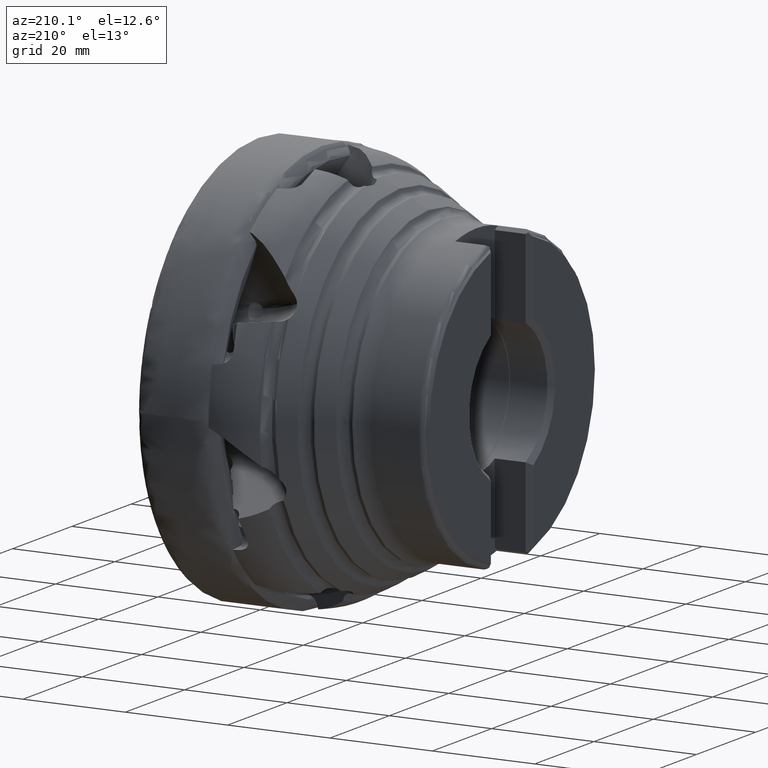
[diagram: clean part render]
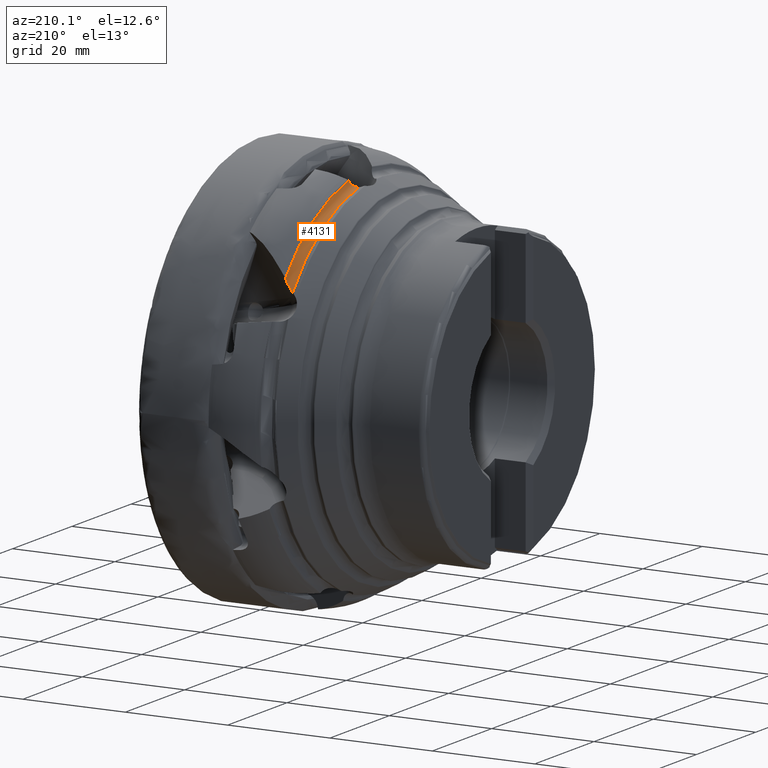
[diagram: same view with one face highlighted and labeled with its STEP entity id]
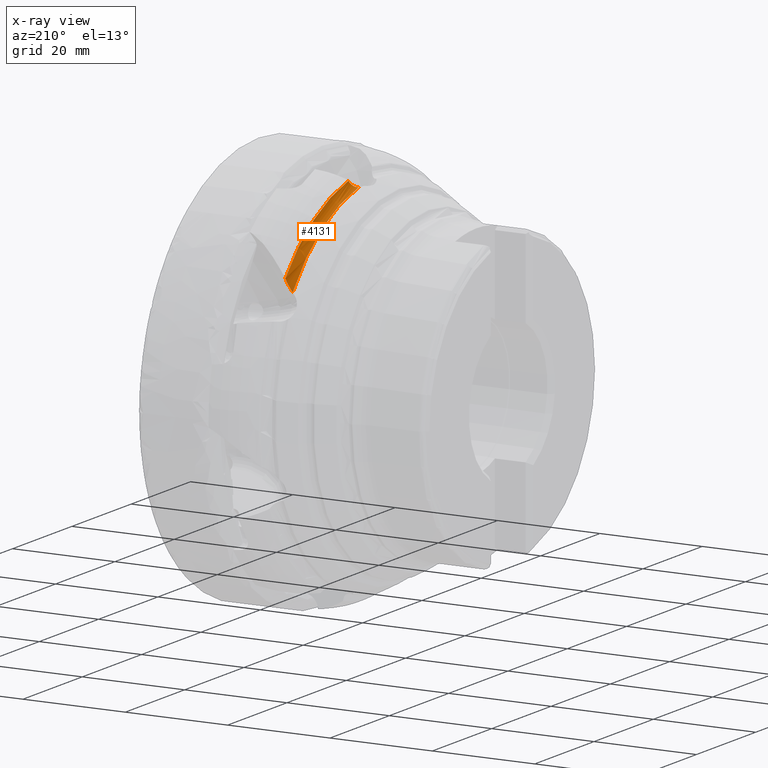
[diagram: x-ray of the same camera — body ghosted, the highlighted face saturated]
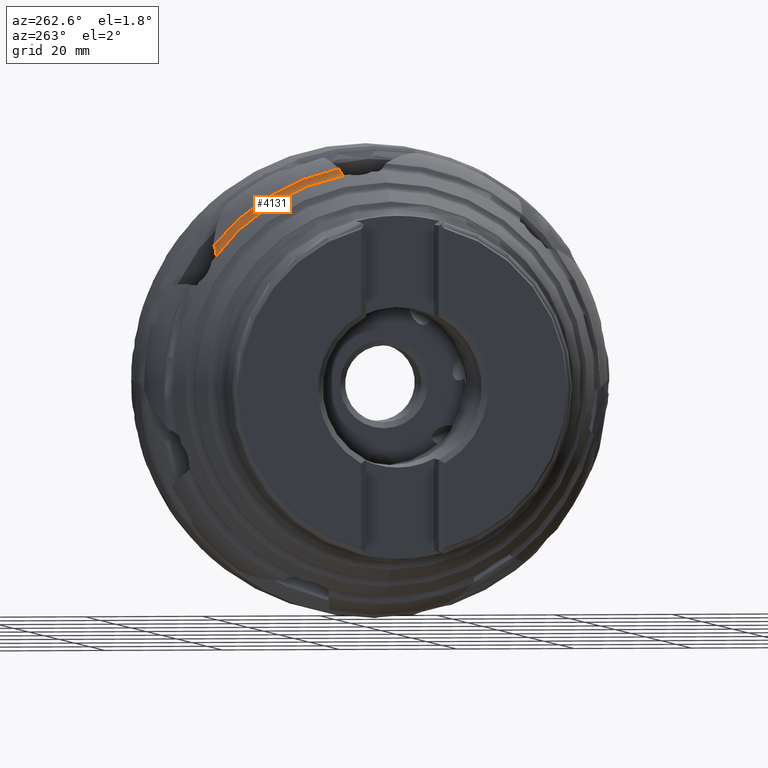
[diagram: same view with one face highlighted and labeled with its STEP entity id]
A machine part, auxiliary view. The second image highlights one B-rep face of the part: STEP entity #4131.
The next image is the same camera in x-ray: the body ghosted, the highlighted face saturated — about 0% of this face is hidden behind the body in this view.
A second angle (auxiliary view) of the same face is appended — the face is thin or edge-on in the first view.
In plain terms, the highlighted toroidal blend (fillet) surface has major radius 37.2787 mm and minor (blend) radius 1.5 mm.
Its self-contained STEP definition (entity closure, byte-faithful):
#122 = CARTESIAN_POINT ( 'NONE',  ( -21.61543644238035400, 28.48814257179125100, 23.09288711005839900 ) ) ;
#688 = CARTESIAN_POINT ( 'NONE',  ( -21.82258156022773200, 6.995801241309860300, 35.66252479020155900 ) ) ;
#1532 = EDGE_CURVE ( 'NONE', #10394, #20086, #8519, .T. ) ;
#1881 = CARTESIAN_POINT ( 'NONE',  ( -23.00000000000000700, 28.75846436598015300, 21.28531473111617700 ) ) ;
#2424 = CARTESIAN_POINT ( 'NONE',  ( -21.51366886119037900, 7.376780514912509200, 36.33538730886324000 ) ) ;
#2434 = CARTESIAN_POINT ( 'NONE',  ( -21.64048194723957200, 7.157501624556357600, 35.92859294768756900 ) ) ;
#2527 = CARTESIAN_POINT ( 'NONE',  ( -21.55836236932539800, 7.267247419753185300, 36.12504777935355100 ) ) ;
#2702 = AXIS2_PLACEMENT_3D ( 'NONE', #22811, #22634, #11316 ) ;
#4131 = ADVANCED_FACE ( 'NONE', ( #21555 ), #5453, .F. ) ;
#4406 = CARTESIAN_POINT ( 'NONE',  ( -22.15976968504241300, 6.799238248007599200, 35.38343021054041100 ) ) ;
#4659 = EDGE_CURVE ( 'NONE', #8862, #13052, #6421, .T. ) ;
#5453 = TOROIDAL_SURFACE ( 'NONE', #7540, 37.27867934807014900, 1.500000000000000900 ) ;
#6421 = B_SPLINE_CURVE_WITH_KNOTS ( 'NONE', 3,
 ( #14284, #8654, #20151, #8744 ),
 .UNSPECIFIED., .F., .F.,
 ( 4, 4 ),
 ( 0.0007498758606794069800, 0.001571875517723296900 ),
 .UNSPECIFIED. ) ;
#6505 = CARTESIAN_POINT ( 'NONE',  ( -21.89750469759962200, 6.944151112375603700, 35.58395211772469900 ) ) ;
#6912 = CARTESIAN_POINT ( 'NONE',  ( -23.00000000000000700, 28.75846436598015300, 21.28531473111617700 ) ) ;
#7540 = AXIS2_PLACEMENT_3D ( 'NONE', #8918, #10843, #18153 ) ;
#7978 = CIRCLE ( 'NONE', #2702, 35.77867934807014900 ) ;
#8395 = CARTESIAN_POINT ( 'NONE',  ( -22.06527289552000000, 6.846242941470591400, 35.44486391305061800 ) ) ;
#8519 = CIRCLE ( 'NONE', #14462, 37.07664037706707900 ) ;
#8590 = EDGE_CURVE ( 'NONE', #10394, #13052, #22351, .T. ) ;
#8654 = CARTESIAN_POINT ( 'NONE',  ( -22.74903080353071900, 6.545076470760264400, 35.17511090594408800 ) ) ;
#8744 = CARTESIAN_POINT ( 'NONE',  ( -22.26003932203427700, 6.756783361763527100, 35.33365407587626800 ) ) ;
#8862 = VERTEX_POINT ( 'NONE', #11199 ) ;
#8918 = CARTESIAN_POINT ( 'NONE',  ( -23.00000000000001100, 0.0000000000000000000, 0.0000000000000000000 ) ) ;
#9519 = VERTEX_POINT ( 'NONE', #6912 ) ;
#9744 = DIRECTION ( 'NONE',  ( 0.0000000000000000000, 0.0000000000000000000, 1.000000000000000000 ) ) ;
#10394 = VERTEX_POINT ( 'NONE', #2424 ) ;
#10809 = ORIENTED_EDGE ( 'NONE', *, *, #4659, .T. ) ;
#10843 = DIRECTION ( 'NONE',  ( -1.000000000000000000, -0.0000000000000000000, -0.0000000000000000000 ) ) ;
#11199 = CARTESIAN_POINT ( 'NONE',  ( -23.00000000000001100, 6.434844103885038400, 35.19526498338544900 ) ) ;
#11264 = CARTESIAN_POINT ( 'NONE',  ( -22.26003932203427700, 6.756783361763527100, 35.33365407587626800 ) ) ;
#11316 = DIRECTION ( 'NONE',  ( 0.0000000000000000000, 0.0000000000000000000, 1.000000000000000000 ) ) ;
#11566 = CARTESIAN_POINT ( 'NONE',  ( -22.19666217486124500, 28.43783498526568800, 22.07576028401688400 ) ) ;
#11652 = CARTESIAN_POINT ( 'NONE',  ( -22.66274191819291400, 28.58713977066856400, 21.56317056835767300 ) ) ;
#12051 = CARTESIAN_POINT ( 'NONE',  ( -21.52920138974657900, 7.323022194668921800, 36.22970272348092600 ) ) ;
#12199 = EDGE_CURVE ( 'NONE', #9519, #20086, #15291, .T. ) ;
#13052 = VERTEX_POINT ( 'NONE', #11264 ) ;
#14125 = CARTESIAN_POINT ( 'NONE',  ( -22.26003932203427700, 6.756783361763527100, 35.33365407587626800 ) ) ;
#14284 = CARTESIAN_POINT ( 'NONE',  ( -23.00000000000001100, 6.434844103885038400, 35.19526498338544900 ) ) ;
#14462 = AXIS2_PLACEMENT_3D ( 'NONE', #19414, #19076, #9744 ) ;
#15291 = B_SPLINE_CURVE_WITH_KNOTS ( 'NONE', 3,
 ( #1881, #19069, #11652, #22995, #11566, #20833, #21165, #122, #15323, #17237 ),
 .UNSPECIFIED., .F., .F.,
 ( 4, 2, 2, 2, 4 ),
 ( 0.001040825317451872900, 0.001745712644334896600, 0.002450599971217920700, 0.003155487298100944300, 0.003860374624983968000 ),
 .UNSPECIFIED. ) ;
#15323 = CARTESIAN_POINT ( 'NONE',  ( -21.54287444387875200, 28.55243210530293400, 23.31436158272579800 ) ) ;
#15687 = CARTESIAN_POINT ( 'NONE',  ( -21.69324581487731900, 7.103208427940612200, 35.83604951287908600 ) ) ;
#15788 = ORIENTED_EDGE ( 'NONE', *, *, #12199, .F. ) ;
#17237 = CARTESIAN_POINT ( 'NONE',  ( -21.51366886119545500, 28.65617573677137400, 23.52659885729360700 ) ) ;
#18153 = DIRECTION ( 'NONE',  ( 0.0000000000000000000, 0.0000000000000000000, 1.000000000000000000 ) ) ;
#19069 = CARTESIAN_POINT ( 'NONE',  ( -22.82861810976437400, 28.66272395101538700, 21.41466904637667700 ) ) ;
#19076 = DIRECTION ( 'NONE',  ( -1.000000000000000000, -0.0000000000000000000, -0.0000000000000000000 ) ) ;
#19414 = CARTESIAN_POINT ( 'NONE',  ( -21.51366886119585000, 0.0000000000000000000, 0.0000000000000000000 ) ) ;
#19603 = CARTESIAN_POINT ( 'NONE',  ( -21.51366886119545500, 28.65617573677137400, 23.52659885729360700 ) ) ;
#19754 = EDGE_LOOP ( 'NONE', ( #20967, #10809, #21304, #20250, #15788 ) ) ;
#19813 = CARTESIAN_POINT ( 'NONE',  ( -21.51366886119037900, 7.376780514912509200, 36.33538730886324000 ) ) ;
#20086 = VERTEX_POINT ( 'NONE', #19603 ) ;
#20151 = CARTESIAN_POINT ( 'NONE',  ( -22.49308221851331900, 6.658111321484458500, 35.21796626702692400 ) ) ;
#20250 = ORIENTED_EDGE ( 'NONE', *, *, #1532, .T. ) ;
#20833 = CARTESIAN_POINT ( 'NONE',  ( -21.92839639663961300, 28.40899300333308700, 22.46082657034853700 ) ) ;
#20967 = ORIENTED_EDGE ( 'NONE', *, *, #22035, .F. ) ;
#21165 = CARTESIAN_POINT ( 'NONE',  ( -21.80713349151042700, 28.41661092068146000, 22.66827510129486700 ) ) ;
#21304 = ORIENTED_EDGE ( 'NONE', *, *, #8590, .F. ) ;
#21555 = FACE_OUTER_BOUND ( 'NONE', #19754, .T. ) ;
#22035 = EDGE_CURVE ( 'NONE', #8862, #9519, #7978, .T. ) ;
#22351 = B_SPLINE_CURVE_WITH_KNOTS ( 'NONE', 3,
 ( #19813, #12051, #2527, #2434, #15687, #688, #6505, #8395, #4406, #14125 ),
 .UNSPECIFIED., .F., .F.,
 ( 4, 2, 2, 2, 4 ),
 ( 0.0008276906133133992700, 0.001185936102042826900, 0.001544181590772254800, 0.001902427079501682500, 0.002260672568231110200 ),
 .UNSPECIFIED. ) ;
#22634 = DIRECTION ( 'NONE',  ( -1.000000000000000000, -0.0000000000000000000, -0.0000000000000000000 ) ) ;
#22811 = CARTESIAN_POINT ( 'NONE',  ( -23.00000000000001100, 0.0000000000000000000, 0.0000000000000000000 ) ) ;
#22995 = CARTESIAN_POINT ( 'NONE',  ( -22.34400582577117000, 28.47373902094281900, 21.89663607893897500 ) ) ;